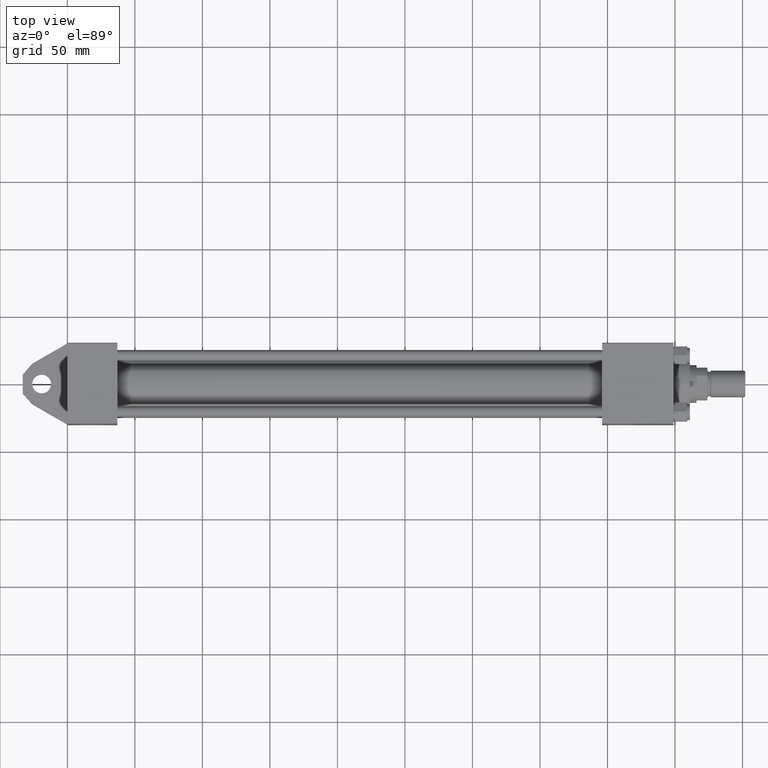
[diagram: clean part render]
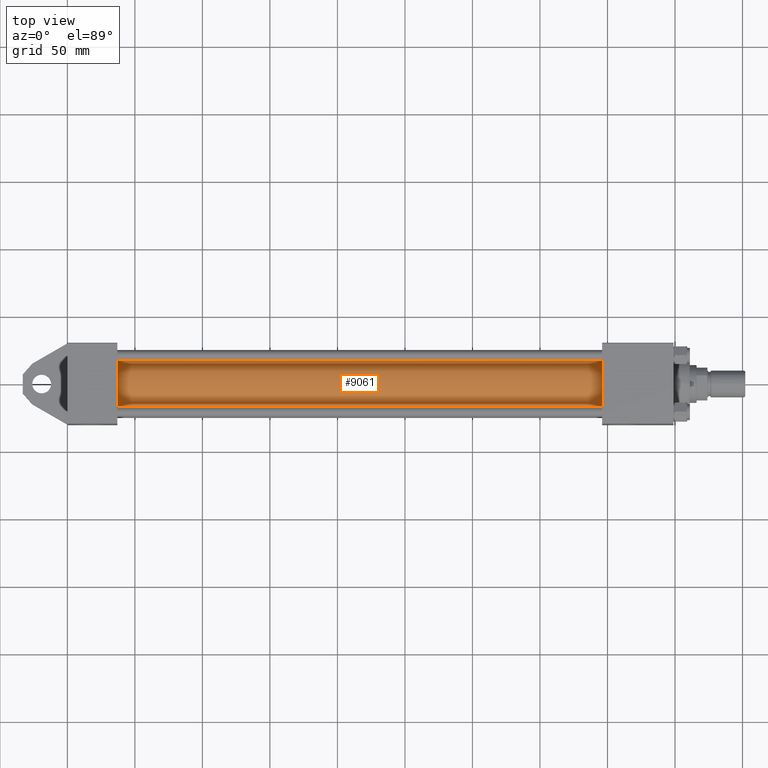
[diagram: same view with one face highlighted and labeled with its STEP entity id]
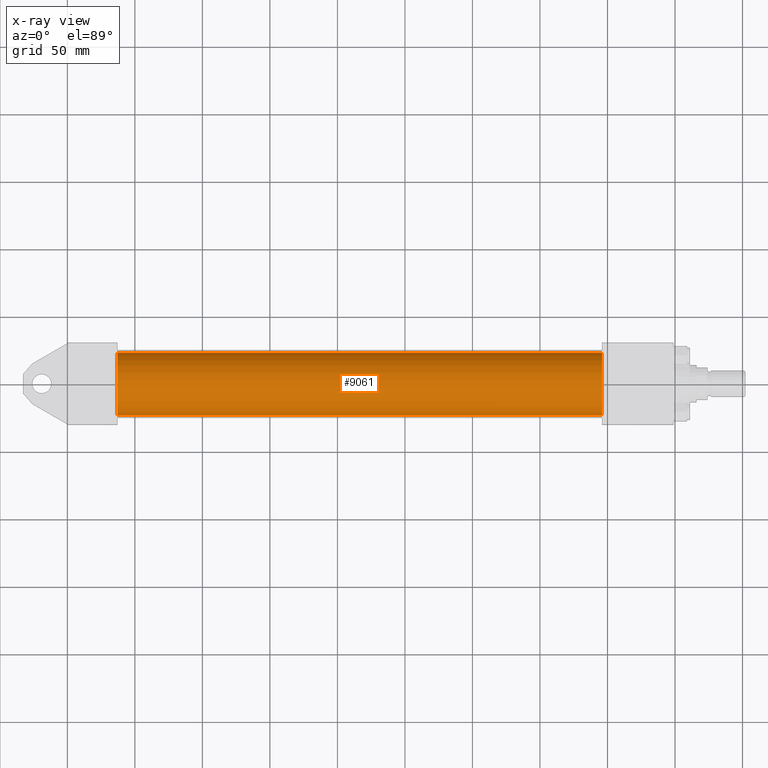
[diagram: x-ray of the same camera — body ghosted, the highlighted face saturated]
A machine part, top view. The second image highlights one B-rep face of the part: STEP entity #9061.
The next image is the same camera in x-ray: the body ghosted, the highlighted face saturated — about 0% of this face is hidden behind the body in this view.
In plain terms, the highlighted cylindrical surface (edge-blend (fillet) strip) has radius 23 mm, axis along (-1, -0, 0).
Its self-contained STEP definition (entity closure, byte-faithful):
#1065 = VECTOR ( 'NONE', #33459, 1000.000000000000000 ) ;
#1350 = CARTESIAN_POINT ( 'NONE',  ( 395.9999999999999432, -2.602085213965210642E-15, 23.00000000000000000 ) ) ;
#1577 = CARTESIAN_POINT ( 'NONE',  ( 36.99999999999997868, 2.146024240737016609E-16, -23.00000000000000000 ) ) ;
#1612 = DIRECTION ( 'NONE',  ( 0.000000000000000000, 0.000000000000000000, 1.000000000000000000 ) ) ;
#4295 = CARTESIAN_POINT ( 'NONE',  ( 395.9999999999999432, -2.602085213965210642E-15, 23.00000000000000000 ) ) ;
#5695 = ORIENTED_EDGE ( 'NONE', *, *, #31096, .F. ) ;
#6000 = FACE_OUTER_BOUND ( 'NONE', #45109, .T. ) ;
#8291 = LINE ( 'NONE', #4295, #1065 ) ;
#8474 = DIRECTION ( 'NONE',  ( -1.000000000000000000, -0.000000000000000000, -0.000000000000000000 ) ) ;
#9061 = ADVANCED_FACE ( 'NONE', ( #6000 ), #12378, .T. ) ;
#9527 = VERTEX_POINT ( 'NONE', #24042 ) ;
#9570 = AXIS2_PLACEMENT_3D ( 'NONE', #35749, #17881, #14362 ) ;
#11733 = AXIS2_PLACEMENT_3D ( 'NONE', #44580, #27629, #37522 ) ;
#12378 = CYLINDRICAL_SURFACE ( 'NONE', #11733, 23.00000000000000000 ) ;
#12472 = VERTEX_POINT ( 'NONE', #1350 ) ;
#14362 = DIRECTION ( 'NONE',  ( 0.000000000000000000, 0.000000000000000000, -1.000000000000000000 ) ) ;
#16293 = EDGE_CURVE ( 'NONE', #34745, #20155, #39983, .T. ) ;
#16321 = ORIENTED_EDGE ( 'NONE', *, *, #25249, .T. ) ;
#17881 = DIRECTION ( 'NONE',  ( 1.000000000000000000, 0.000000000000000000, 0.000000000000000000 ) ) ;
#19056 = CARTESIAN_POINT ( 'NONE',  ( 395.9999999999999432, 2.146024240737016609E-16, -23.00000000000000000 ) ) ;
#20155 = VERTEX_POINT ( 'NONE', #1577 ) ;
#20449 = AXIS2_PLACEMENT_3D ( 'NONE', #44185, #36660, #1612 ) ;
#23528 = CIRCLE ( 'NONE', #20449, 23.00000000000000000 ) ;
#24042 = CARTESIAN_POINT ( 'NONE',  ( 36.99999999999997868, -2.602085213965210642E-15, 23.00000000000000000 ) ) ;
#25249 = EDGE_CURVE ( 'NONE', #20155, #9527, #23528, .T. ) ;
#25648 = CARTESIAN_POINT ( 'NONE',  ( 395.9999999999999432, 2.146024240737016609E-16, -23.00000000000000000 ) ) ;
#27629 = DIRECTION ( 'NONE',  ( -1.000000000000000000, -0.000000000000000000, -0.000000000000000000 ) ) ;
#31096 = EDGE_CURVE ( 'NONE', #12472, #9527, #8291, .T. ) ;
#33022 = VECTOR ( 'NONE', #8474, 1000.000000000000000 ) ;
#33459 = DIRECTION ( 'NONE',  ( -1.000000000000000000, -0.000000000000000000, -0.000000000000000000 ) ) ;
#34745 = VERTEX_POINT ( 'NONE', #25648 ) ;
#35749 = CARTESIAN_POINT ( 'NONE',  ( 395.9999999999999432, -2.602085213965210642E-15, 0.000000000000000000 ) ) ;
#36611 = CIRCLE ( 'NONE', #9570, 23.00000000000000000 ) ;
#36660 = DIRECTION ( 'NONE',  ( 1.000000000000000000, -0.000000000000000000, 0.000000000000000000 ) ) ;
#37522 = DIRECTION ( 'NONE',  ( 0.000000000000000000, 0.000000000000000000, 1.000000000000000000 ) ) ;
#38212 = EDGE_CURVE ( 'NONE', #34745, #12472, #36611, .T. ) ;
#39983 = LINE ( 'NONE', #19056, #33022 ) ;
#40385 = ORIENTED_EDGE ( 'NONE', *, *, #16293, .T. ) ;
#41436 = ORIENTED_EDGE ( 'NONE', *, *, #38212, .F. ) ;
#44185 = CARTESIAN_POINT ( 'NONE',  ( 36.99999999999997868, -2.602085213965210642E-15, 0.000000000000000000 ) ) ;
#44580 = CARTESIAN_POINT ( 'NONE',  ( 395.9999999999999432, -2.602085213965210642E-15, 0.000000000000000000 ) ) ;
#45109 = EDGE_LOOP ( 'NONE', ( #41436, #40385, #16321, #5695 ) ) ;